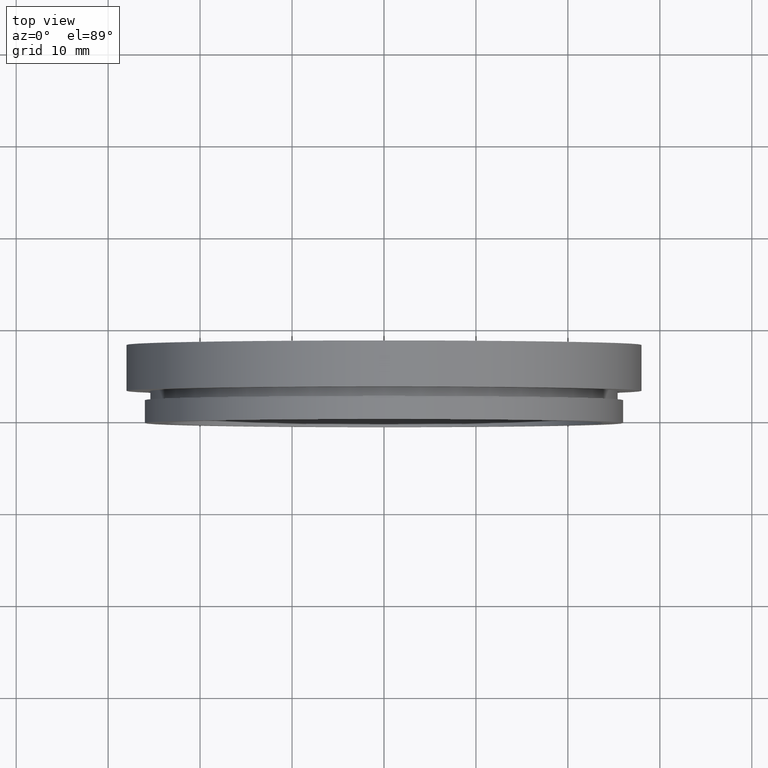
[diagram: clean part render]
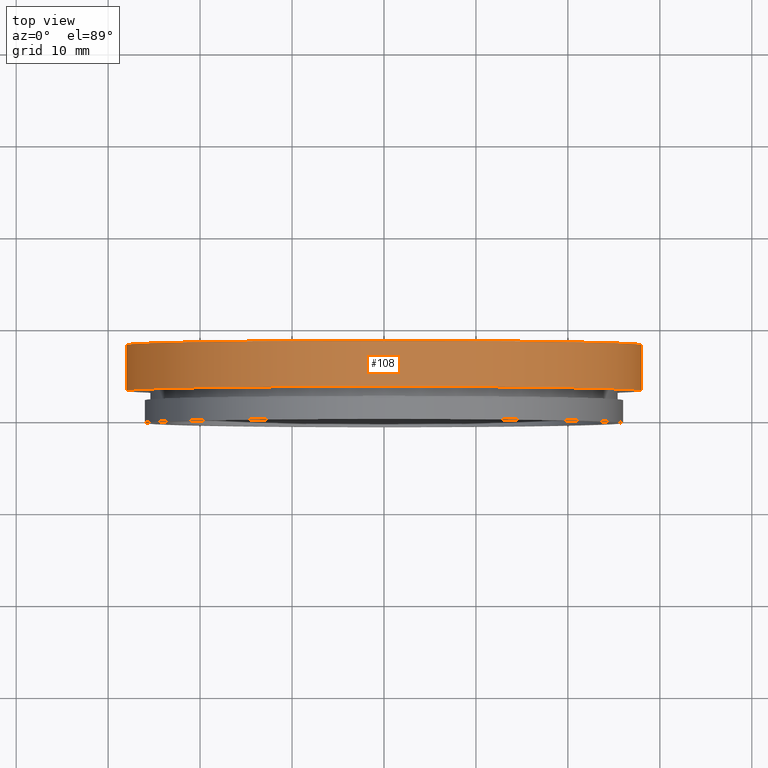
[diagram: same view with one face highlighted and labeled with its STEP entity id]
A machine part, top view. The second image highlights one B-rep face of the part: STEP entity #108.
In plain terms, the highlighted cylindrical surface (partial cylindrical patch) has radius 28 mm, axis along (-0, 1, -0).
Its self-contained STEP definition (entity closure, byte-faithful):
#11 = CARTESIAN_POINT ( 'NONE',  ( -28.00000000000000700, 2.954535588880331100, 0.0000000000000000000 ) ) ;
#26 = DIRECTION ( 'NONE',  ( -1.224646799147351000E-016, 1.000000000000000000, -0.0000000000000000000 ) ) ;
#45 = AXIS2_PLACEMENT_3D ( 'NONE', #392, #26, #290 ) ;
#60 = ORIENTED_EDGE ( 'NONE', *, *, #390, .F. ) ;
#63 = CARTESIAN_POINT ( 'NONE',  ( -28.00000000000000000, 7.954535588880330200, 0.0000000000000000000 ) ) ;
#91 = EDGE_CURVE ( 'NONE', #413, #289, #243, .T. ) ;
#92 = VERTEX_POINT ( 'NONE', #11 ) ;
#105 = ORIENTED_EDGE ( 'NONE', *, *, #91, .T. ) ;
#108 = ADVANCED_FACE ( 'NONE', ( #221 ), #426, .T. ) ;
#115 = VECTOR ( 'NONE', #127, 1000.000000000000000 ) ;
#119 = DIRECTION ( 'NONE',  ( -1.000000000000000000, -1.239088197126290600E-016, 0.0000000000000000000 ) ) ;
#123 = ORIENTED_EDGE ( 'NONE', *, *, #162, .F. ) ;
#126 = VERTEX_POINT ( 'NONE', #63 ) ;
#127 = DIRECTION ( 'NONE',  ( -1.224646799147351000E-016, 1.000000000000000000, -0.0000000000000000000 ) ) ;
#135 = CARTESIAN_POINT ( 'NONE',  ( 0.0000000000000000000, 16.88601823708207700, 0.0000000000000000000 ) ) ;
#144 = CIRCLE ( 'NONE', #330, 28.00000000000000700 ) ;
#145 = VECTOR ( 'NONE', #279, 1000.000000000000000 ) ;
#154 = DIRECTION ( 'NONE',  ( -1.224646799147351000E-016, 1.000000000000000000, -0.0000000000000000000 ) ) ;
#162 = EDGE_CURVE ( 'NONE', #126, #289, #174, .T. ) ;
#172 = EDGE_CURVE ( 'NONE', #92, #413, #144, .T. ) ;
#174 = CIRCLE ( 'NONE', #45, 28.00000000000000000 ) ;
#195 = ORIENTED_EDGE ( 'NONE', *, *, #172, .T. ) ;
#221 = FACE_OUTER_BOUND ( 'NONE', #295, .T. ) ;
#243 = LINE ( 'NONE', #338, #145 ) ;
#255 = AXIS2_PLACEMENT_3D ( 'NONE', #135, #305, #375 ) ;
#277 = LINE ( 'NONE', #340, #115 ) ;
#279 = DIRECTION ( 'NONE',  ( -1.224646799147351000E-016, 1.000000000000000000, -0.0000000000000000000 ) ) ;
#289 = VERTEX_POINT ( 'NONE', #316 ) ;
#290 = DIRECTION ( 'NONE',  ( -1.000000000000000000, -1.239088197126290800E-016, 0.0000000000000000000 ) ) ;
#295 = EDGE_LOOP ( 'NONE', ( #195, #105, #123, #60 ) ) ;
#305 = DIRECTION ( 'NONE',  ( -1.224646799147351000E-016, 1.000000000000000000, -0.0000000000000000000 ) ) ;
#316 = CARTESIAN_POINT ( 'NONE',  ( 28.00000000000000000, 7.954535588880337300, 3.429011037612589300E-015 ) ) ;
#324 = CARTESIAN_POINT ( 'NONE',  ( 1.706114563249712100E-015, 2.954535588880334600, 0.0000000000000000000 ) ) ;
#330 = AXIS2_PLACEMENT_3D ( 'NONE', #324, #154, #119 ) ;
#338 = CARTESIAN_POINT ( 'NONE',  ( 28.00000000000000400, 16.88601823708208000, 3.429011037612589700E-015 ) ) ;
#340 = CARTESIAN_POINT ( 'NONE',  ( -28.00000000000000400, 16.88601823708207300, 0.0000000000000000000 ) ) ;
#364 = CARTESIAN_POINT ( 'NONE',  ( 28.00000000000001100, 2.954535588880338200, 3.429011037612590100E-015 ) ) ;
#375 = DIRECTION ( 'NONE',  ( -1.000000000000000000, -1.239088197126290600E-016, 0.0000000000000000000 ) ) ;
#390 = EDGE_CURVE ( 'NONE', #92, #126, #277, .T. ) ;
#392 = CARTESIAN_POINT ( 'NONE',  ( 1.093791163676037000E-015, 7.954535588880333700, 0.0000000000000000000 ) ) ;
#413 = VERTEX_POINT ( 'NONE', #364 ) ;
#426 = CYLINDRICAL_SURFACE ( 'NONE', #255, 28.00000000000000400 ) ;